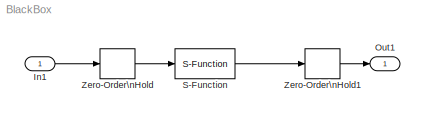
MODEL BlackBox
KIND model
BLOCK [Inport] In1
  IconDisplay = Port number
  SID = 24
BLOCK [Outport] Out1
  IconDisplay = Port number
  SID = 23
BLOCK [S-Function] S-Function
  EnableBusSupport = off
  FunctionName = StableBlackBox_10_sf
  Ports = [1, 1]
  SFcnIsStateOwnerBlock = off
  SFunctionDeploymentMode = off
  SID = 25
BLOCK [ZeroOrderHold] Zero-Order\nHold
  SID = 21
  SampleTime = Ts
BLOCK [ZeroOrderHold] Zero-Order\nHold1
  SID = 22
  SampleTime = Ts
LINE In1:1 -> Zero-Order\nHold:1
LINE S-Function:1 -> Zero-Order\nHold1:1
LINE Zero-Order\nHold1:1 -> Out1:1
LINE Zero-Order\nHold:1 -> S-Function:1
